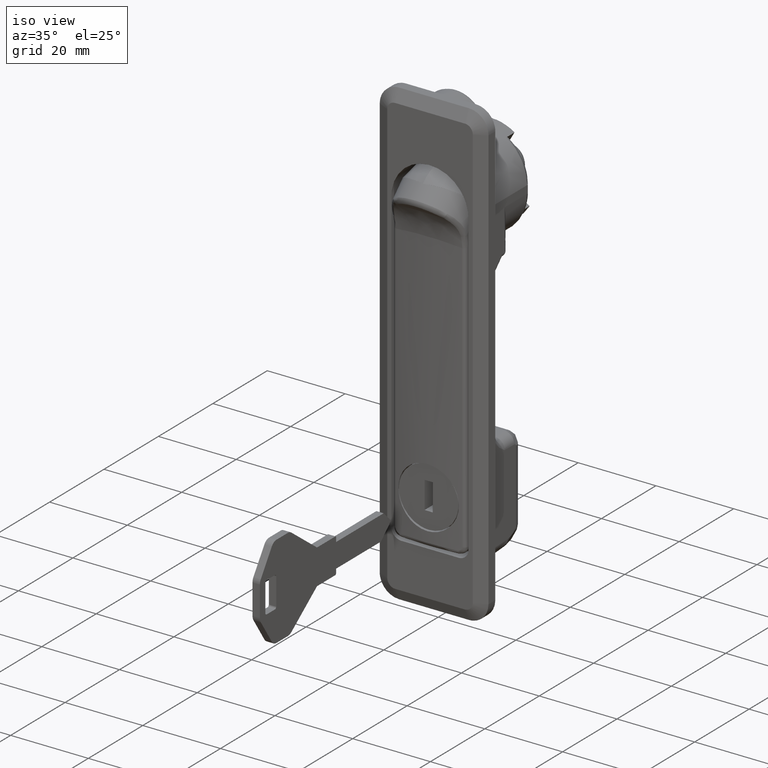
[diagram: clean part render]
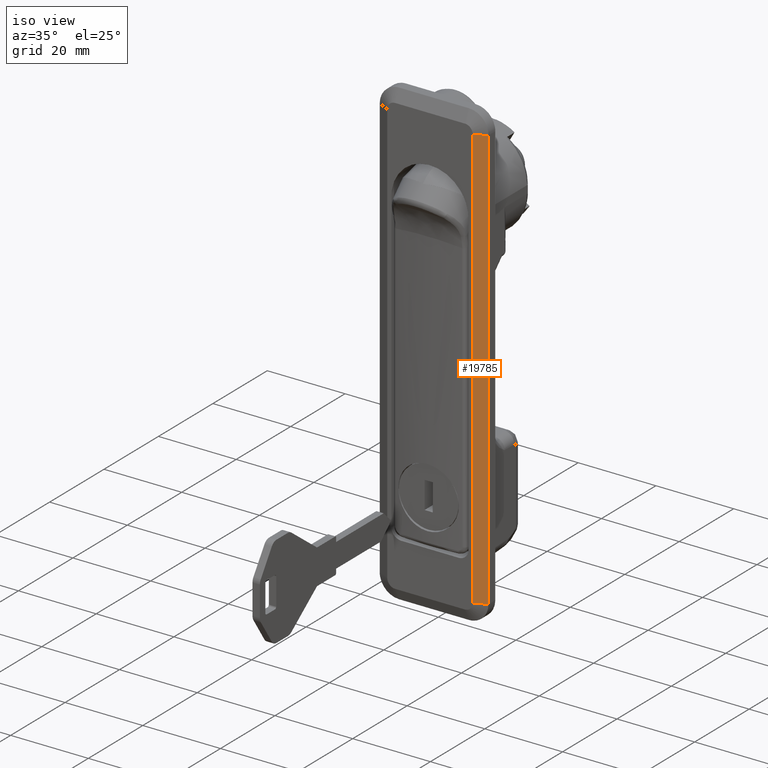
[diagram: same view with one face highlighted and labeled with its STEP entity id]
A machine part, iso view. The second image highlights one B-rep face of the part: STEP entity #19785.
In plain terms, the highlighted face is a freeform B-spline surface patch.
Its self-contained STEP definition (entity closure, byte-faithful):
#19666=CARTESIAN_POINT('',(-2.999999999999915,-11.0,20.0));
#19667=VERTEX_POINT('',#19666);
#19668=CARTESIAN_POINT('',(-1.499999999999946,-14.0,20.0));
#19669=VERTEX_POINT('',#19668);
#19670=CARTESIAN_POINT('',(-2.999999999999915,-11.0,20.0));
#19671=CARTESIAN_POINT('',(-1.499999999999946,-14.0,20.0));
#19672=QUASI_UNIFORM_CURVE('',1,(#19670,#19671),.UNSPECIFIED.,.F.,.U.);
#19673=EDGE_CURVE('',#19667,#19669,#19672,.T.);
#19758=CARTESIAN_POINT('',(-1.425075002907237,-14.149849994185420,-94.444549788736865));
#19759=CARTESIAN_POINT('',(-3.074925037325757,-10.850149925348310,-94.444549788736865));
#19760=CARTESIAN_POINT('',(-1.425075002907237,-14.149849994185420,25.444552712344660));
#19761=CARTESIAN_POINT('',(-3.074925037325757,-10.850149925348310,25.444552712344660));
#19762=B_SPLINE_SURFACE_WITH_KNOTS('',1,1,((#19758,#19760),(#19759,#19761)),.UNSPECIFIED.,.F.,.F.,.U.,(2,2),(2,2),(0.0,3.689176829640241),(0.0,119.889102501081500),.UNSPECIFIED.);
#19763=CARTESIAN_POINT('',(-2.999999999999915,-11.0,-89.0));
#19764=VERTEX_POINT('',#19763);
#19765=CARTESIAN_POINT('',(-1.499999999999946,-14.0,-89.0));
#19766=VERTEX_POINT('',#19765);
#19767=CARTESIAN_POINT('',(-2.999999999999915,-11.0,-89.0));
#19768=CARTESIAN_POINT('',(-1.499999999999946,-14.0,-89.0));
#19769=QUASI_UNIFORM_CURVE('',1,(#19767,#19768),.UNSPECIFIED.,.F.,.U.);
#19770=EDGE_CURVE('',#19764,#19766,#19769,.T.);
#19771=ORIENTED_EDGE('',*,*,#19770,.T.);
#19772=CARTESIAN_POINT('',(-1.499999999999946,-14.0,20.0));
#19773=CARTESIAN_POINT('',(-1.499999999999946,-14.0,-89.0));
#19774=QUASI_UNIFORM_CURVE('',1,(#19772,#19773),.UNSPECIFIED.,.F.,.U.);
#19775=EDGE_CURVE('',#19669,#19766,#19774,.T.);
#19776=ORIENTED_EDGE('',*,*,#19775,.F.);
#19777=ORIENTED_EDGE('',*,*,#19673,.F.);
#19778=CARTESIAN_POINT('',(-2.999999999999915,-11.0,-89.0));
#19779=CARTESIAN_POINT('',(-2.999999999999915,-11.0,20.0));
#19780=QUASI_UNIFORM_CURVE('',1,(#19778,#19779),.UNSPECIFIED.,.F.,.U.);
#19781=EDGE_CURVE('',#19764,#19667,#19780,.T.);
#19782=ORIENTED_EDGE('',*,*,#19781,.F.);
#19783=EDGE_LOOP('',(#19771,#19776,#19777,#19782));
#19784=FACE_OUTER_BOUND('',#19783,.T.);
#19785=ADVANCED_FACE('',(#19784),#19762,.F.);